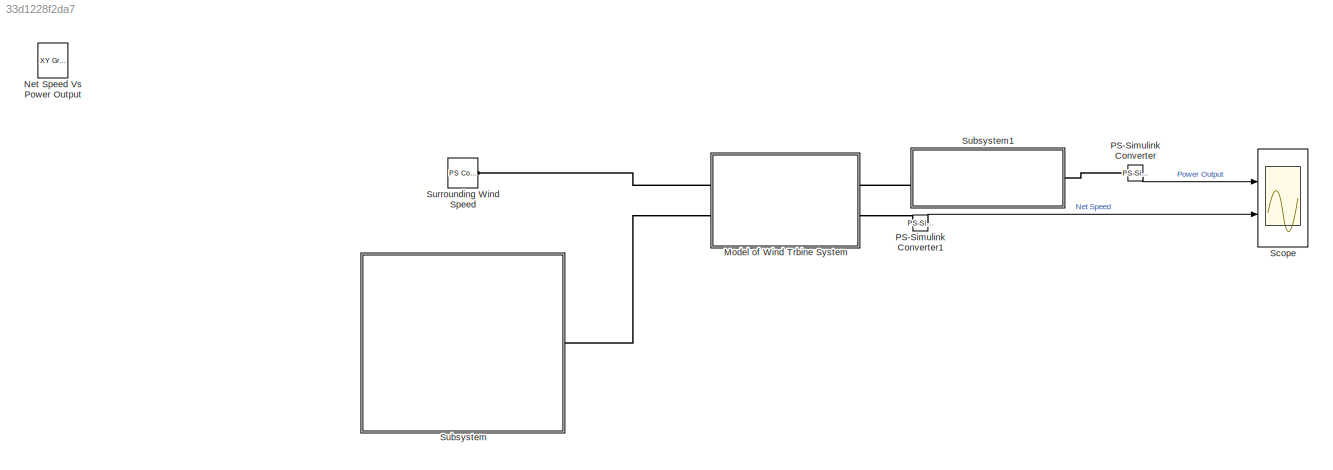
MODEL slx_33d1228f2da7
KIND model
CONFIG AbsTol = auto
CONFIG EnableMultiTasking = off
CONFIG FixedStep = auto
CONFIG MaxStep = auto
CONFIG MinStep = auto
CONFIG RelTol = 1e-3
CONFIG SampleTimeConstraint = Unconstrained
CONFIG Solver = VariableStepAuto
CONFIG SolverName = VariableStepAuto
CONFIG StartTime = 0.0
CONFIG StopTime = 10.0
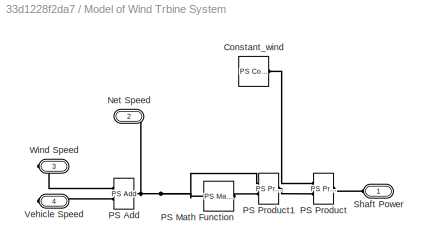
BLOCK [SubSystem] Model of Wind Trbine System
  Description = Wind Turbine with Generator
  NameLocation = top
  Ports = [0, 0, 0, 0, 0, 2, 2]
  RequestExecContextInheritance = off
BLOCK [Reference] Model of Wind Trbine System/Constant_wind  REF=fl_lib/Physical Signals/Sources/PS Constant
  Ports = [0, 0, 0, 0, 0, 0, 1]
  SourceBlock = fl_lib/Physical Signals/Sources/PS Constant
  SourceProductBaseCode = SS
  SourceType = PS Constant
BLOCK [PMIOPort] Model of Wind Trbine System/Net Speed
  Port = 2
  Side = Left
BLOCK [Reference] Model of Wind Trbine System/PS Add  REF=fl_lib/Physical Signals/Functions/PS Add
  Ports = [0, 0, 0, 0, 0, 2, 1]
  SourceBlock = fl_lib/Physical Signals/Functions/PS Add
  SourceProductBaseCode = SS
  SourceType = PS Add
BLOCK [Reference] Model of Wind Trbine System/PS Math Function  REF=fl_lib/Physical Signals/Functions/PS Math Function
  Ports = [0, 0, 0, 0, 0, 1, 1]
  SourceBlock = fl_lib/Physical Signals/Functions/PS Math Function
  SourceProductBaseCode = SS
  SourceType = PS Math Function
BLOCK [Reference] Model of Wind Trbine System/PS Product  REF=fl_lib/Physical Signals/Functions/PS Product
  Ports = [0, 0, 0, 0, 0, 2, 1]
  SourceBlock = fl_lib/Physical Signals/Functions/PS Product
  SourceProductBaseCode = SS
  SourceType = PS Product
BLOCK [Reference] Model of Wind Trbine System/PS Product1  REF=fl_lib/Physical Signals/Functions/PS Product
  Ports = [0, 0, 0, 0, 0, 2, 1]
  SourceBlock = fl_lib/Physical Signals/Functions/PS Product
  SourceProductBaseCode = SS
  SourceType = PS Product
BLOCK [PMIOPort] Model of Wind Trbine System/Shaft Power
  Side = Left
BLOCK [PMIOPort] Model of Wind Trbine System/Vehicle Speed
  Port = 4
  Side = Right
BLOCK [PMIOPort] Model of Wind Trbine System/Wind Speed
  Port = 3
  Side = Right
BLOCK [Reference] Net Speed Vs Power Output  REF=simulink/Sinks/XY Graph
  IOType = viewer
  Ports = [2]
  SourceBlock = simulink/Sinks/XY Graph
  SourceProductBaseCode = SL
  SourceType = XY scope.
BLOCK [Reference] PS-Simulink Converter  REF=nesl_utility/PS-Simulink
Converter
  Ports = [0, 1, 0, 0, 0, 1]
  SourceBlock = nesl_utility/PS-Simulink\nConverter
  SourceProductBaseCode = SS
  SourceType = PS-Simulink\nConverter
BLOCK [Reference] PS-Simulink Converter1  REF=nesl_utility/PS-Simulink
Converter
  Ports = [0, 1, 0, 0, 0, 1]
  SourceBlock = nesl_utility/PS-Simulink\nConverter
  SourceProductBaseCode = SS
  SourceType = PS-Simulink\nConverter
BLOCK [Scope] Scope
  Floating = off
  NumInputPorts = 2
  Ports = [2]
  ScopeSpecificationString = Simulink.scopes.TimeScopeBlockCfg('CurrentConfiguration', extmgr.ConfigurationSet(extmgr.Configuration('Core','General UI',true),extmgr.Configuration('Core','Source UI',true),extmgr.Configuration('Sources','WiredSimulink',true),extmgr.Configuration('Visuals','Time Domain',true,'SerializedDisplays',{struct('MinYLimReal','-5.09913','MaxYLimReal','300','YLabelReal','','MinYLimMag','0.00000','MaxYLimM...<+1978ch>
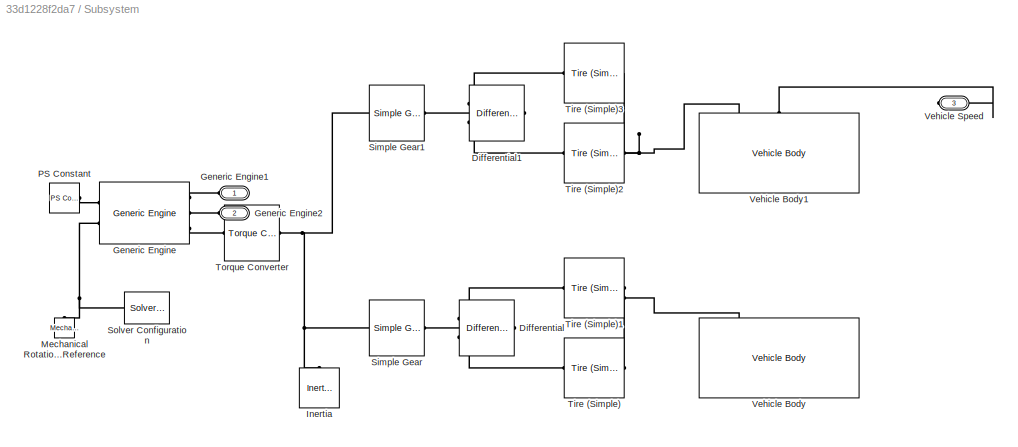
BLOCK [SubSystem] Subsystem
  Ports = [0, 0, 0, 0, 0, 2, 1]
  RequestExecContextInheritance = off
BLOCK [Reference] Subsystem/Differential  REF=sdl_lib/Gears/Differential
  NameLocation = top
  Ports = [0, 0, 0, 0, 0, 1, 2]
  SourceBlock = sdl_lib/Gears/Differential
  SourceProductBaseCode = LD
  SourceType = Differential
BLOCK [Reference] Subsystem/Differential1  REF=sdl_lib/Gears/Differential
  NameLocation = top
  Ports = [0, 0, 0, 0, 0, 1, 2]
  SourceBlock = sdl_lib/Gears/Differential
  SourceProductBaseCode = LD
  SourceType = Differential
BLOCK [Reference] Subsystem/Generic Engine  REF=sdl_lib/Engines/Generic Engine
  Ports = [0, 0, 0, 0, 0, 2, 3]
  SourceBlock = sdl_lib/Engines/Generic Engine
  SourceProductBaseCode = LD
  SourceType = Generic Engine
BLOCK [PMIOPort] Subsystem/Generic Engine1
  Side = Left
BLOCK [PMIOPort] Subsystem/Generic Engine2
  Port = 2
  Side = Left
BLOCK [Reference] Subsystem/Inertia  REF=fl_lib/Mechanical/Rotational Elements/Inertia
  NameLocation = right
  Ports = [0, 0, 0, 0, 0, 1]
  SourceBlock = fl_lib/Mechanical/Rotational Elements/Inertia
  SourceProductBaseCode = SS
  SourceType = Inertia
BLOCK [Reference] Subsystem/Mechanical Rotational Reference  REF=fl_lib/Mechanical/Rotational Elements/Mechanical
Rotational Reference
  NameLocation = right
  Ports = [0, 0, 0, 0, 0, 1]
  SourceBlock = fl_lib/Mechanical/Rotational Elements/Mechanical\nRotational Reference
  SourceProductBaseCode = SS
  SourceType = Mechanical\nRotational Reference
BLOCK [Reference] Subsystem/PS Constant  REF=fl_lib/Physical Signals/Sources/PS Constant
  Ports = [0, 0, 0, 0, 0, 0, 1]
  SourceBlock = fl_lib/Physical Signals/Sources/PS Constant
  SourceProductBaseCode = SS
  SourceType = PS Constant
BLOCK [Reference] Subsystem/Simple Gear  REF=sdl_lib/Gears/Simple Gear
  Ports = [0, 0, 0, 0, 0, 1, 1]
  SourceBlock = sdl_lib/Gears/Simple Gear
  SourceProductBaseCode = LD
  SourceType = Simple Gear
BLOCK [Reference] Subsystem/Simple Gear1  REF=sdl_lib/Gears/Simple Gear
  Ports = [0, 0, 0, 0, 0, 1, 1]
  SourceBlock = sdl_lib/Gears/Simple Gear
  SourceProductBaseCode = LD
  SourceType = Simple Gear
BLOCK [Reference] Subsystem/Solver Configuration  REF=nesl_utility/Solver
Configuration
  Ports = [0, 0, 0, 0, 0, 0, 1]
  SourceBlock = nesl_utility/Solver\nConfiguration
  SourceProductBaseCode = MT,SS
  SourceType = Solver\nConfiguration
BLOCK [Reference] Subsystem/Tire (Simple)  REF=sdl_lib/Tires & Vehicles/Tire (Simple)
  Ports = [0, 0, 0, 0, 0, 1, 1]
  SourceBlock = sdl_lib/Tires & Vehicles/Tire (Simple)
  SourceProductBaseCode = LD
  SourceType = Tire (Simple)
BLOCK [Reference] Subsystem/Tire (Simple)1  REF=sdl_lib/Tires & Vehicles/Tire (Simple)
  Ports = [0, 0, 0, 0, 0, 1, 1]
  SourceBlock = sdl_lib/Tires & Vehicles/Tire (Simple)
  SourceProductBaseCode = LD
  SourceType = Tire (Simple)
BLOCK [Reference] Subsystem/Tire (Simple)2  REF=sdl_lib/Tires & Vehicles/Tire (Simple)
  Ports = [0, 0, 0, 0, 0, 1, 1]
  SourceBlock = sdl_lib/Tires & Vehicles/Tire (Simple)
  SourceProductBaseCode = LD
  SourceType = Tire (Simple)
BLOCK [Reference] Subsystem/Tire (Simple)3  REF=sdl_lib/Tires & Vehicles/Tire (Simple)
  Ports = [0, 0, 0, 0, 0, 1, 1]
  SourceBlock = sdl_lib/Tires & Vehicles/Tire (Simple)
  SourceProductBaseCode = LD
  SourceType = Tire (Simple)
BLOCK [Reference] Subsystem/Torque Converter  REF=sdl_lib/Couplings & Drives/Torque Converter
  Ports = [0, 0, 0, 0, 0, 1, 1]
  SourceBlock = sdl_lib/Couplings & Drives/Torque Converter
  SourceProductBaseCode = LD
  SourceType = Torque Converter
BLOCK [Reference] Subsystem/Vehicle Body  REF=sdl_lib/Tires & Vehicles/Vehicle Body
  NameLocation = right
  Ports = [0, 0, 0, 0, 0, 3, 3]
  SourceBlock = sdl_lib/Tires & Vehicles/Vehicle Body
  SourceProductBaseCode = LD
  SourceType = Vehicle Body
BLOCK [Reference] Subsystem/Vehicle Body1  REF=sdl_lib/Tires & Vehicles/Vehicle Body
  NameLocation = right
  Ports = [0, 0, 0, 0, 0, 3, 3]
  SourceBlock = sdl_lib/Tires & Vehicles/Vehicle Body
  SourceProductBaseCode = LD
  SourceType = Vehicle Body
BLOCK [PMIOPort] Subsystem/Vehicle Speed
  Port = 3
  Side = Right
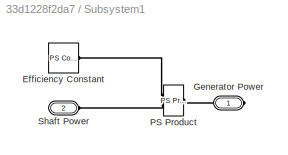
BLOCK [SubSystem] Subsystem1
  Ports = [0, 0, 0, 0, 0, 1, 1]
  RequestExecContextInheritance = off
BLOCK [Reference] Subsystem1/Efficiency Constant  REF=fl_lib/Physical Signals/Sources/PS Constant
  Ports = [0, 0, 0, 0, 0, 0, 1]
  SourceBlock = fl_lib/Physical Signals/Sources/PS Constant
  SourceProductBaseCode = SS
  SourceType = PS Constant
BLOCK [PMIOPort] Subsystem1/Generator Power
  Side = Right
BLOCK [Reference] Subsystem1/PS Product  REF=fl_lib/Physical Signals/Functions/PS Product
  Ports = [0, 0, 0, 0, 0, 2, 1]
  SourceBlock = fl_lib/Physical Signals/Functions/PS Product
  SourceProductBaseCode = SS
  SourceType = PS Product
BLOCK [PMIOPort] Subsystem1/Shaft Power
  Port = 2
  Side = Left
BLOCK [Reference] Surrounding Wind Speed  REF=fl_lib/Physical Signals/Sources/PS Constant
  Ports = [0, 0, 0, 0, 0, 0, 1]
  SourceBlock = fl_lib/Physical Signals/Sources/PS Constant
  SourceProductBaseCode = SS
  SourceType = PS Constant
LINE PS-Simulink Converter1:1 -> Scope:2
LINE PS-Simulink Converter:1 -> Scope:1
PLINE Model of Wind Trbine System/Constant_wind:RConn1 -- Model of Wind Trbine System/PS Product:LConn1
PNET net1: Model of Wind Trbine System/Net Speed:RConn1 -- Model of Wind Trbine System/PS Add:RConn1 -- Model of Wind Trbine System/PS Math Function:LConn1 -- Model of Wind Trbine System/PS Product1:LConn1
PLINE Model of Wind Trbine System/PS Add:LConn1 -- Model of Wind Trbine System/Wind Speed:RConn1
PLINE Model of Wind Trbine System/PS Add:LConn2 -- Model of Wind Trbine System/Vehicle Speed:RConn1
PLINE Model of Wind Trbine System/PS Math Function:RConn1 -- Model of Wind Trbine System/PS Product1:LConn2
PLINE Model of Wind Trbine System/PS Product1:RConn1 -- Model of Wind Trbine System/PS Product:LConn2
PLINE Model of Wind Trbine System/PS Product:RConn1 -- Model of Wind Trbine System/Shaft Power:RConn1
PLINE Model of Wind Trbine System:LConn1 -- Subsystem1:LConn1
PLINE Model of Wind Trbine System:LConn2 -- PS-Simulink Converter1:LConn1
PLINE Model of Wind Trbine System:RConn1 -- Surrounding Wind Speed:RConn1
PLINE Model of Wind Trbine System:RConn2 -- Subsystem:RConn1
PLINE PS-Simulink Converter:LConn1 -- Subsystem1:RConn1
PLINE Subsystem/Differential1:LConn1 -- Subsystem/Simple Gear1:RConn1
PLINE Subsystem/Differential1:RConn1 -- Subsystem/Tire (Simple)2:LConn1
PLINE Subsystem/Differential1:RConn2 -- Subsystem/Tire (Simple)3:LConn1
PLINE Subsystem/Differential:LConn1 -- Subsystem/Simple Gear:RConn1
PLINE Subsystem/Differential:RConn1 -- Subsystem/Tire (Simple):LConn1
PLINE Subsystem/Differential:RConn2 -- Subsystem/Tire (Simple)1:LConn1
PLINE Subsystem/Generic Engine1:RConn1 -- Subsystem/Generic Engine:RConn1
PLINE Subsystem/Generic Engine2:RConn1 -- Subsystem/Generic Engine:RConn2
PLINE Subsystem/Generic Engine:LConn1 -- Subsystem/PS Constant:RConn1
PNET net2: Subsystem/Generic Engine:LConn2 -- Subsystem/Mechanical Rotational Reference:LConn1 -- Subsystem/Solver Configuration:RConn1
PLINE Subsystem/Generic Engine:RConn3 -- Subsystem/Torque Converter:LConn1
PNET net3: Subsystem/Inertia:LConn1 -- Subsystem/Simple Gear1:LConn1 -- Subsystem/Simple Gear:LConn1 -- Subsystem/Torque Converter:RConn1
PNET net4: Subsystem/Tire (Simple)1:RConn1 -- Subsystem/Tire (Simple):RConn1 -- Subsystem/Vehicle Body:LConn1
PNET net5: Subsystem/Tire (Simple)2:RConn1 -- Subsystem/Tire (Simple)3:RConn1 -- Subsystem/Vehicle Body1:LConn1
PLINE Subsystem/Vehicle Body1:LConn2 -- Subsystem/Vehicle Speed:RConn1
PLINE Subsystem1/Efficiency Constant:RConn1 -- Subsystem1/PS Product:LConn1
PLINE Subsystem1/Generator Power:RConn1 -- Subsystem1/PS Product:RConn1
PLINE Subsystem1/PS Product:LConn2 -- Subsystem1/Shaft Power:RConn1
note: PNET lines group multi-terminal physical nets as a canonical sorted terminal list (undirected conserving connections); 2-terminal nets keep the pairwise PLINE form
